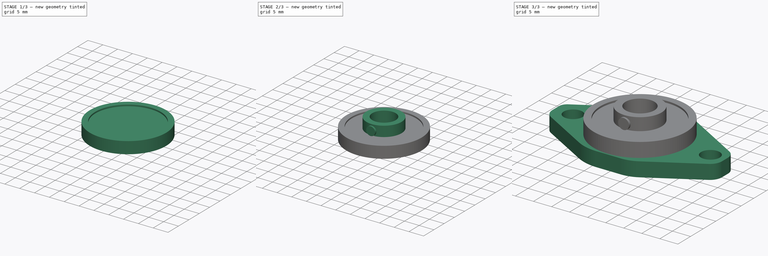
[diagram: build sequence overview — one tinted view per stage of 3, left to right]
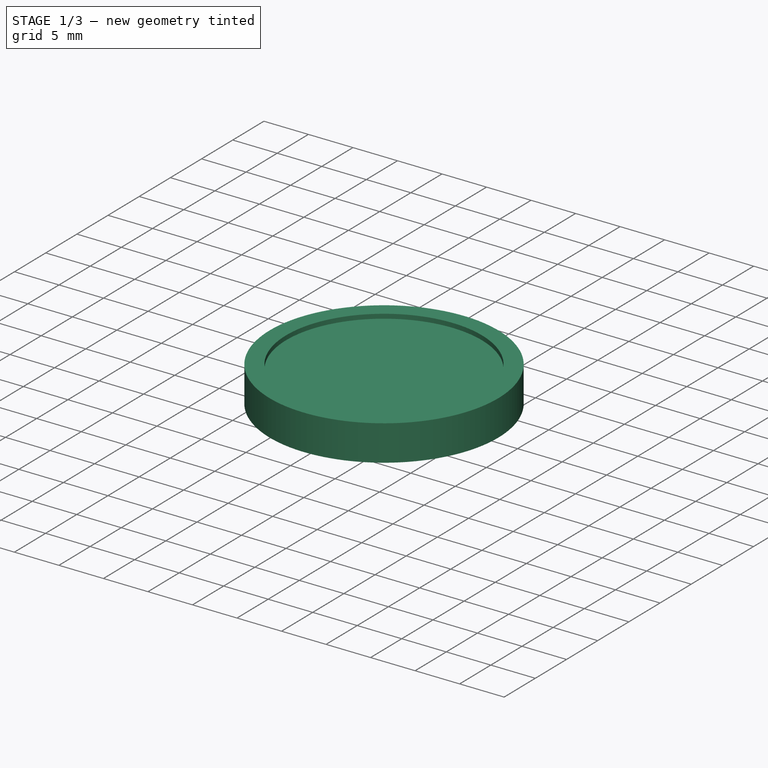
[diagram: stage 1 of 3 — iso view after this stage's code; geometry added in this stage tinted green]
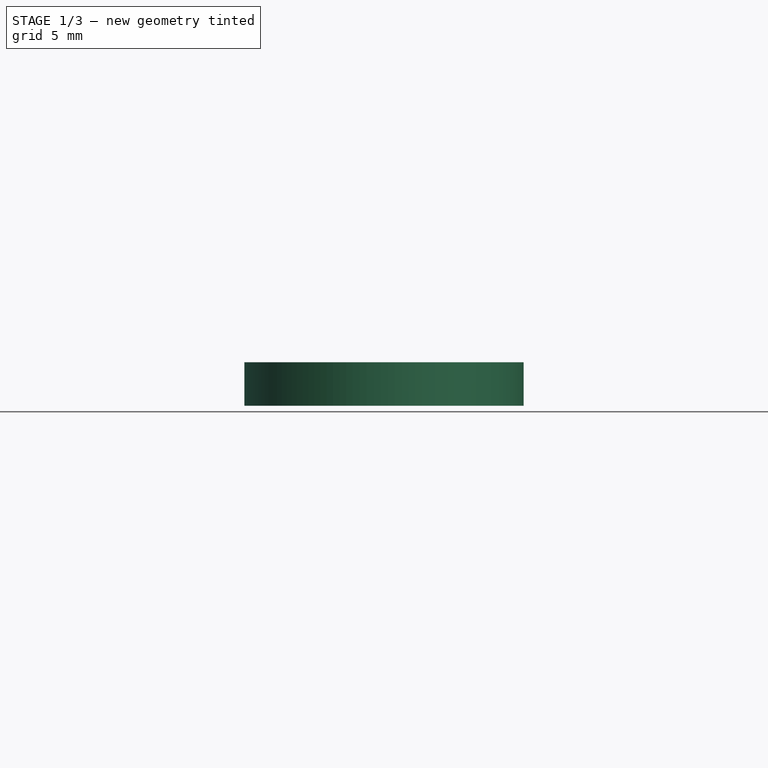
[diagram: stage 1 of 3 — front view after this stage's code; geometry added in this stage tinted green]
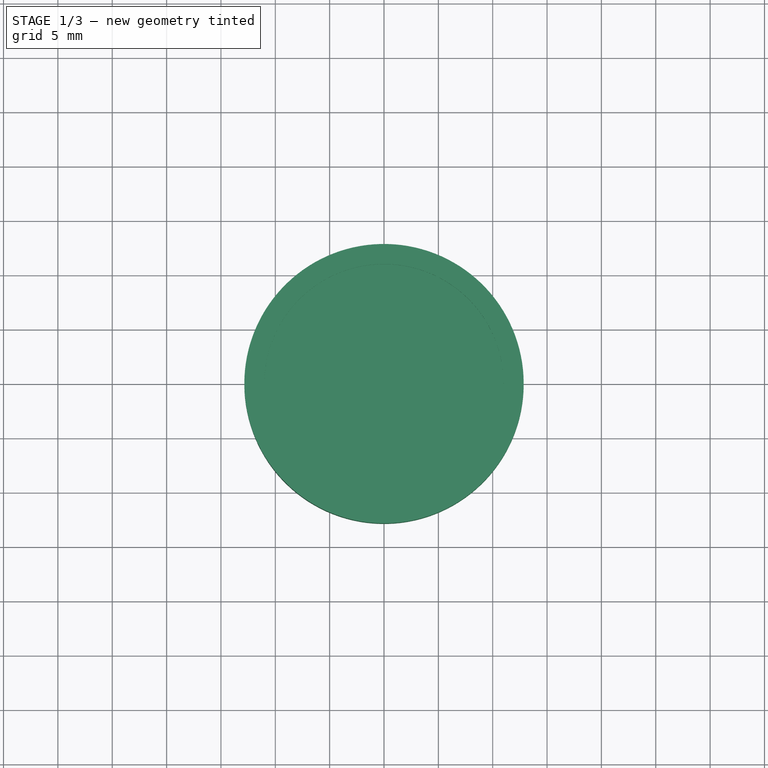
[diagram: stage 1 of 3 — top view after this stage's code; geometry added in this stage tinted green]
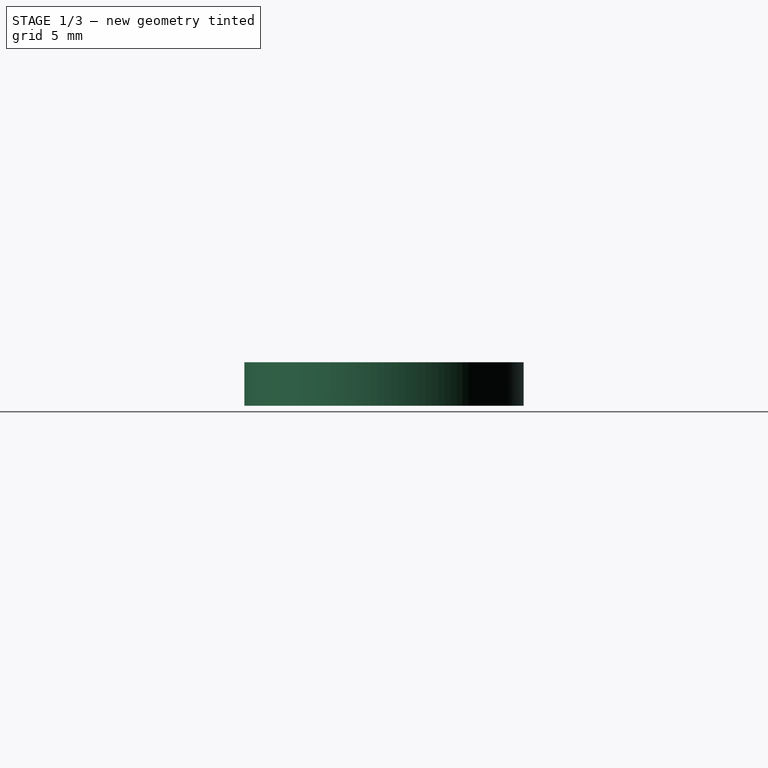
[diagram: stage 1 of 3 — right view after this stage's code; geometry added in this stage tinted green]
FCSTD DOCUMENT  (FreeCAD 0.17R13541 (Git))
Label: linearBearing-KFL08_2
License: All rights reserved
LicenseURL: http://en.wikipedia.org/wiki/All_rights_reserved
objects: Sketcher::SketchObject×7, PartDesign::Pad×4, PartDesign::Body×4, PartDesign::Pocket×3, App::Part×2
note: 25 computed .brp shape members not serialized (recipe doc carries the construction recipe); baked Part::Feature solids carry a one-line shape summary decoded from their .brp

FEATURE [Sketcher::SketchObject] Sketch
  MapMode = 5
  Support = -> [XY_Plane]
  sketch-geometry (1):
    g0: Circle CenterX=0 CenterY=0 CenterZ=0 NormalX=0 NormalY=0 NormalZ=1 AngleXU=0 Radius=12.85
  constraints (2):
    c: Coincident(g0,g-1)
    c: Radius(g0) = 12.85
FEATURE [PartDesign::Pad] Pad
  Length = 4
  Length2 = 100
  Profile = -> Sketch
  Type = 0
FEATURE [Sketcher::SketchObject] Sketch003
  MapMode = 5
  Placement = pos=(0,0,4) rot=(0,0,1;0rad)
  sketch-geometry (1):
    g0: Circle CenterX=0 CenterY=0 CenterZ=0 NormalX=0 NormalY=0 NormalZ=1 AngleXU=0 Radius=11
  constraints (2):
    c: Coincident(g0,g-1)
    c: Radius(g0) = 11
FEATURE [PartDesign::Pocket] Pocket
  BaseFeature = -> Pad
  Length = 0.5
  Length2 = 100
  Profile = -> Sketch003
  Type = 0
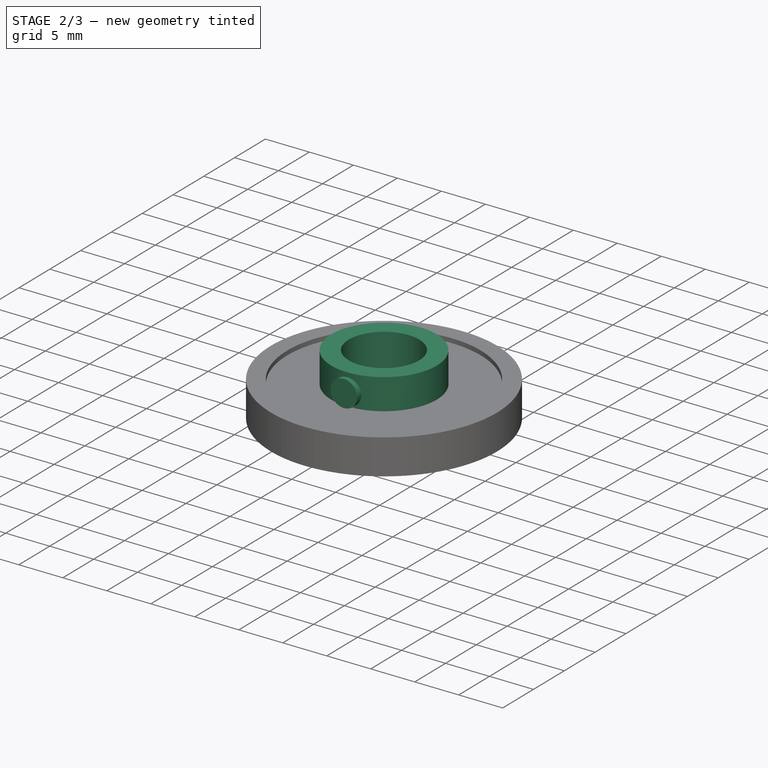
[diagram: stage 2 of 3 — iso view after this stage's code; geometry added in this stage tinted green]
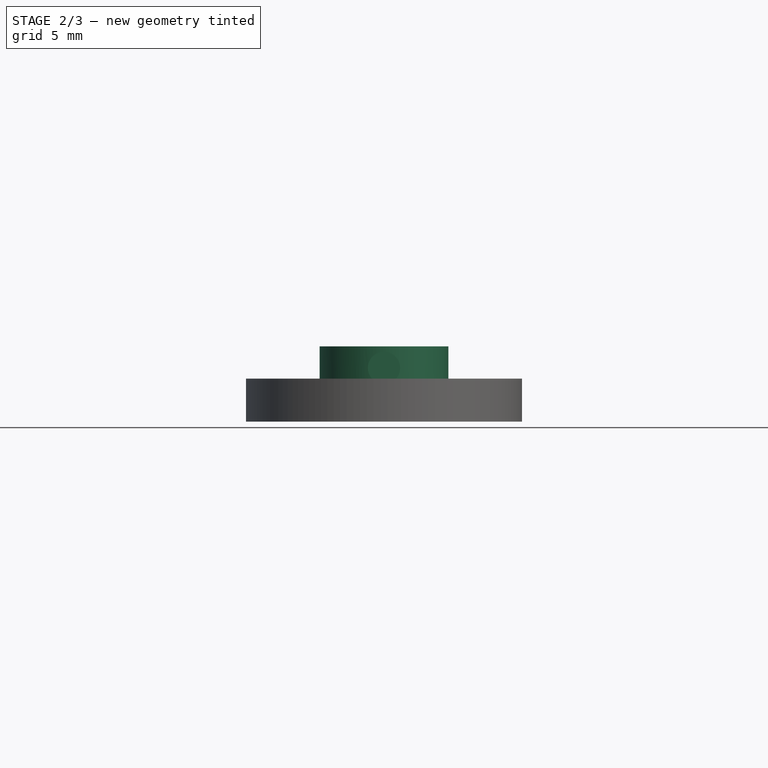
[diagram: stage 2 of 3 — front view after this stage's code; geometry added in this stage tinted green]
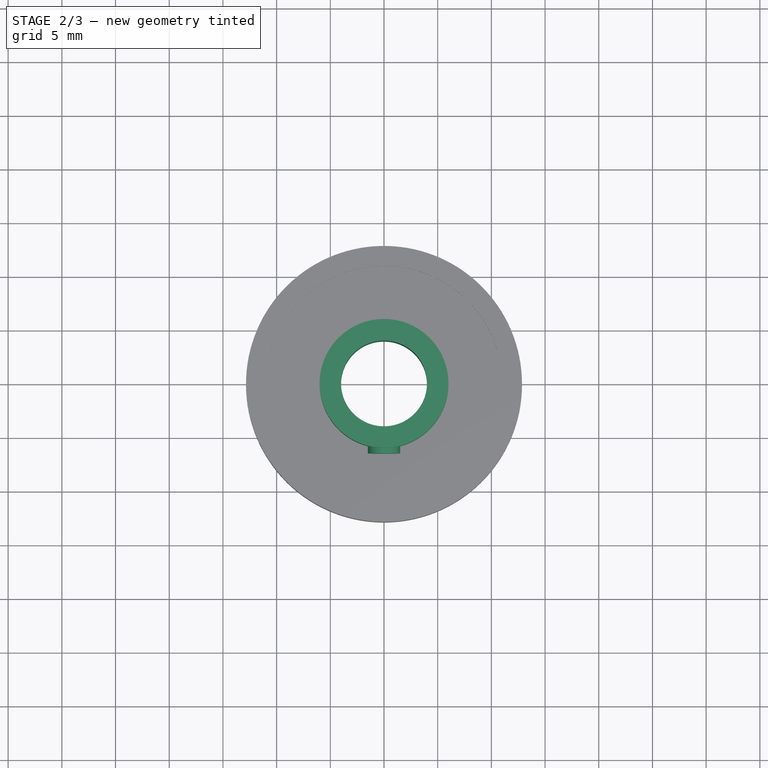
[diagram: stage 2 of 3 — top view after this stage's code; geometry added in this stage tinted green]
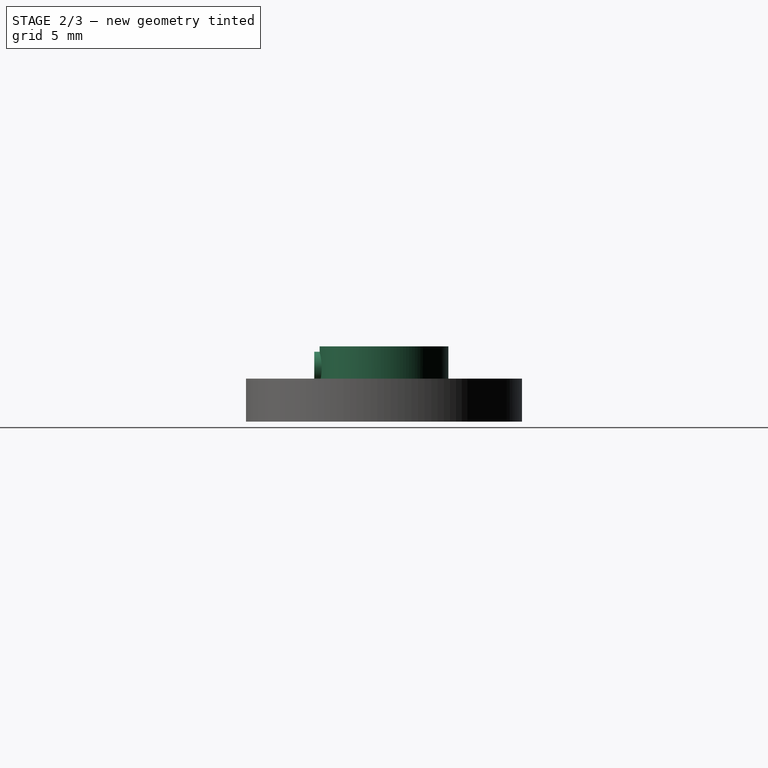
[diagram: stage 2 of 3 — right view after this stage's code; geometry added in this stage tinted green]
FEATURE [Sketcher::SketchObject] Sketch004
  MapMode = 5
  Placement = pos=(0,0,3.5) rot=(0,0,1;0rad)
  Support = -> [Pocket]
  sketch-geometry (1):
    g0: Circle CenterX=0 CenterY=0 CenterZ=0 NormalX=0 NormalY=0 NormalZ=1 AngleXU=0 Radius=6
  constraints (2):
    c: Coincident(g0,g-1)
    c: Radius(g0) = 6
FEATURE [PartDesign::Pad] Pad001
  BaseFeature = -> Pocket
  Length = 3.5
  Length2 = 100
  Profile = -> Sketch004
  Type = 0
FEATURE [Sketcher::SketchObject] Sketch005
  MapMode = 5
  Placement = pos=(0,0,7) rot=(0,0,1;0rad)
  Support = -> [Pad001]
  sketch-geometry (1):
    g0: Circle CenterX=0 CenterY=0 CenterZ=0 NormalX=0 NormalY=0 NormalZ=1 AngleXU=0 Radius=4
  constraints (2):
    c: PointOnObject(g0,g-1)
    c: Radius(g0) = 4
FEATURE [Sketcher::SketchObject] Sketch006
  MapMode = 5
  Placement = pos=(0,0,0) rot=(1,0,0;1.5708rad)
  Support = -> [XZ_Plane]
  sketch-geometry (1):
    g0: Circle CenterX=0 CenterY=5 CenterZ=0 NormalX=0 NormalY=0 NormalZ=1 AngleXU=0 Radius=1.5
  constraints (2):
    c: PointOnObject(g0,g-2)
    c: Radius(g0) = 1.5
FEATURE [Sketcher::SketchObject] Sketch007
  MapMode = 5
  Support = -> [XY_Plane]
  sketch-geometry (18):
    g0: LineSegment StartX=-3.54245 StartY=13.25 StartZ=0 EndX=4.3734 EndY=13.25 EndZ=0
    g1: LineSegment StartX=23.65 StartY=1.04209 StartZ=0 EndX=23.65 EndY=-1.32221 EndZ=0
    g2: LineSegment StartX=3.96901 StartY=-13.25 StartZ=0 EndX=-2.71589 EndY=-13.25 EndZ=0
    g3: LineSegment StartX=-23.65 StartY=-0.871538 StartZ=0 EndX=-23.65 EndY=1.68697 EndZ=0
    g4: LineSegment StartX=-8.04359 StartY=12.0439 StartZ=0 EndX=-22.4838 EndY=3.70685 EndZ=0
    g5: LineSegment StartX=-21.7776 StartY=-4.11457 StartZ=0 EndX=-8.75941 EndY=-11.6306 EndZ=0
    g6: LineSegment StartX=8.3652 StartY=-12.0747 StartZ=0 EndX=21.9595 EndY=-4.24643 EndZ=0
    g7: LineSegment StartX=7.25116 StartY=12.4771 StartZ=0 EndX=21.9699 EndY=3.95601 EndZ=0
    g8: Circle CenterX=-18.5 CenterY=-0.045589 CenterZ=0 NormalX=0 NormalY=0 NormalZ=1 AngleXU=0 Radius=2.6
    g9: Circle CenterX=19.5 CenterY=0 CenterZ=0 NormalX=0 NormalY=0 NormalZ=1 AngleXU=0 Radius=2.6
    g10: ArcOfCircle CenterX=-3.54245 CenterY=4.24771 CenterZ=0 NormalX=0 NormalY=0 NormalZ=1 AngleXU=0 Radius=9.00229 StartAngle=1.5708 EndAngle=2.0944
    g11: ArcOfCircle CenterX=4.3734 CenterY=7.50623 CenterZ=0 NormalX=0 NormalY=0 NormalZ=1 AngleXU=0 Radius=5.74377 StartAngle=1.04602 EndAngle=1.5708
    g12: ArcOfCircle CenterX=20.283 CenterY=1.04209 CenterZ=0 NormalX=0 NormalY=0 NormalZ=1 AngleXU=0 Radius=3.367 StartAngle=0 EndAngle=1.04602
    g13: ArcOfCircle CenterX=20.2756 CenterY=-1.32221 CenterZ=0 NormalX=0 NormalY=0 NormalZ=1 AngleXU=0 Radius=3.37441 StartAngle=5.23486 EndAngle=6.28319
    g14: ArcOfCircle CenterX=3.96901 CenterY=-4.44043 CenterZ=0 NormalX=0 NormalY=0 NormalZ=1 AngleXU=0 Radius=8.80957 StartAngle=4.71239 EndAngle=5.23486
    g15: ArcOfCircle CenterX=-2.71589 CenterY=-1.16296 CenterZ=0 NormalX=0 NormalY=0 NormalZ=1 AngleXU=0 Radius=12.087 StartAngle=4.18879 EndAngle=4.71239
    g16: ArcOfCircle CenterX=-19.9053 CenterY=-0.871538 CenterZ=0 NormalX=0 NormalY=0 NormalZ=1 AngleXU=0 Radius=3.74473 StartAngle=3.14159 EndAngle=4.18879
    g17: ArcOfCircle CenterX=-21.3176 CenterY=1.68697 CenterZ=0 NormalX=0 NormalY=0 NormalZ=1 AngleXU=0 Radius=2.33237 StartAngle=2.0944 EndAngle=3.14159
  constraints (27):
    c: Horizontal(g0)
    c: Horizontal(g2)
    c: Vertical(g1)
    c: Vertical(g3)
    c: Angle(g-1,g4) = 0.523599
    c: Angle(g5,g-1) = 0.523599
    c: Radius(g8) = 2.6
    c: DistanceX(g8,g-1) = 18.5
    c: PointOnObject(g9,g-1)
    c: Radius(g9) = 2.6
    c: DistanceX(g8,g9) = 38
    c: Tangent(g4,g10) = -1.5708
    c: Tangent(g0,g10) = 1.5708
    c: Tangent(g0,g11) = 1.5708
    c: Tangent(g7,g11) = 1.5708
    c: Tangent(g7,g12) = 1.5708
    c: Tangent(g1,g12) = 1.5708
    c: Tangent(g1,g13) = 1.5708
    c: Tangent(g6,g13) = -1.5708
    c: Tangent(g6,g14) = -1.5708
    c: Tangent(g2,g14) = 1.5708
    c: Tangent(g2,g15) = 1.5708
    c: Tangent(g5,g15) = -1.5708
    c: Tangent(g5,g16) = -1.5708
    c: Tangent(g3,g16) = 1.5708
    c: Tangent(g3,g17) = 1.5708
    c: Tangent(g4,g17) = -1.5708
FEATURE [PartDesign::Pad] Pad002
  BaseFeature = -> Pad001
  Length = 6.5
  Length2 = 100
  Profile = -> Sketch006
  Type = 0
FEATURE [PartDesign::Pocket] Pocket001
  BaseFeature = -> Pad002
  Length = 5
  Length2 = 100
  Profile = -> Sketch005
  Type = 1
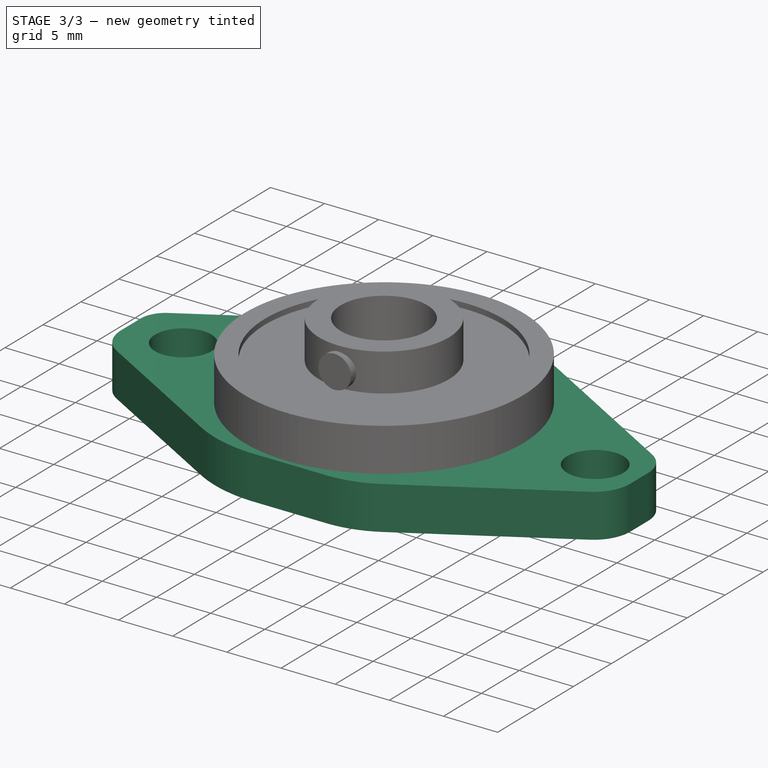
[diagram: stage 3 of 3 — iso view after this stage's code; geometry added in this stage tinted green]
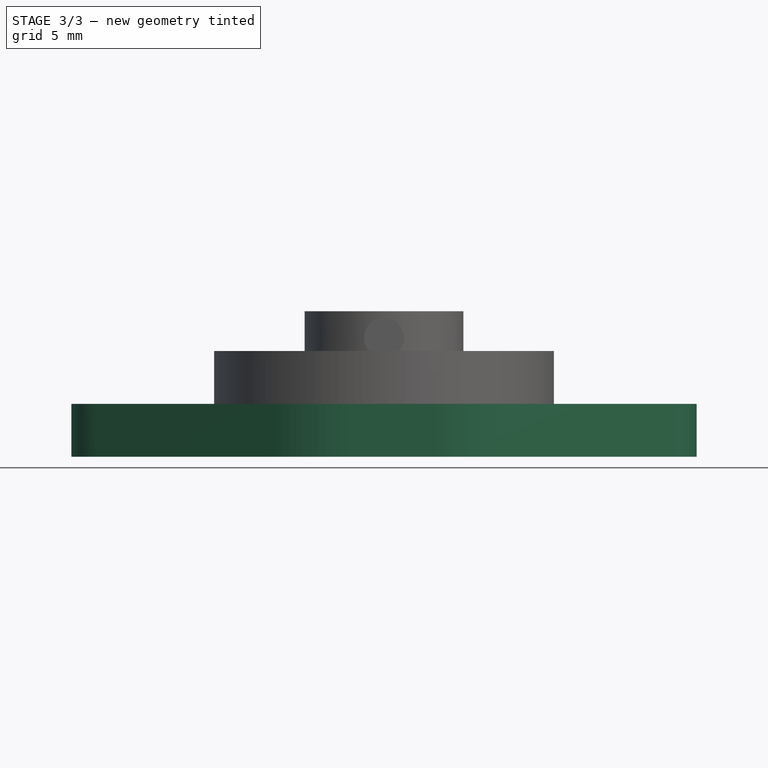
[diagram: stage 3 of 3 — front view after this stage's code; geometry added in this stage tinted green]
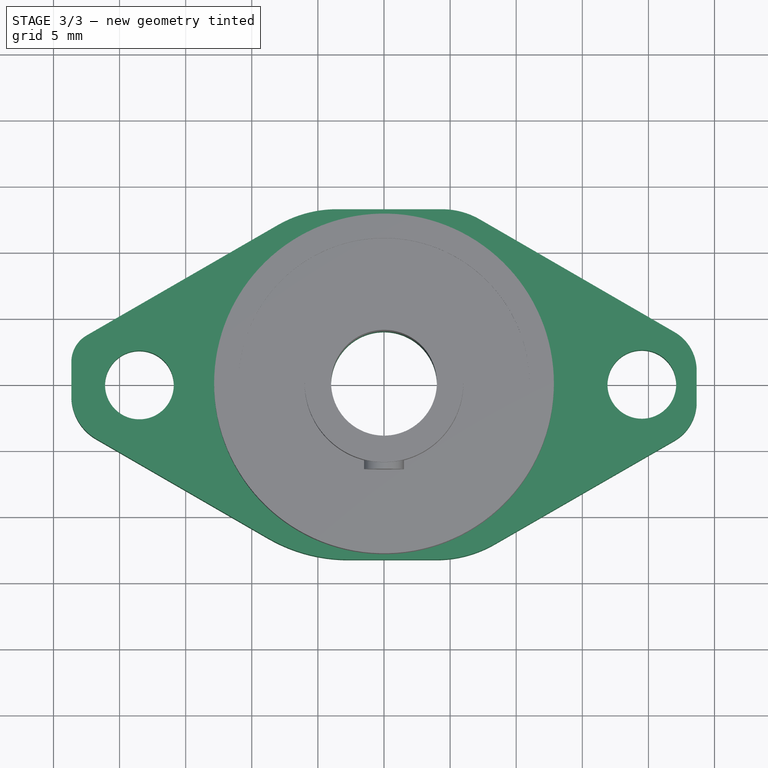
[diagram: stage 3 of 3 — top view after this stage's code; geometry added in this stage tinted green]
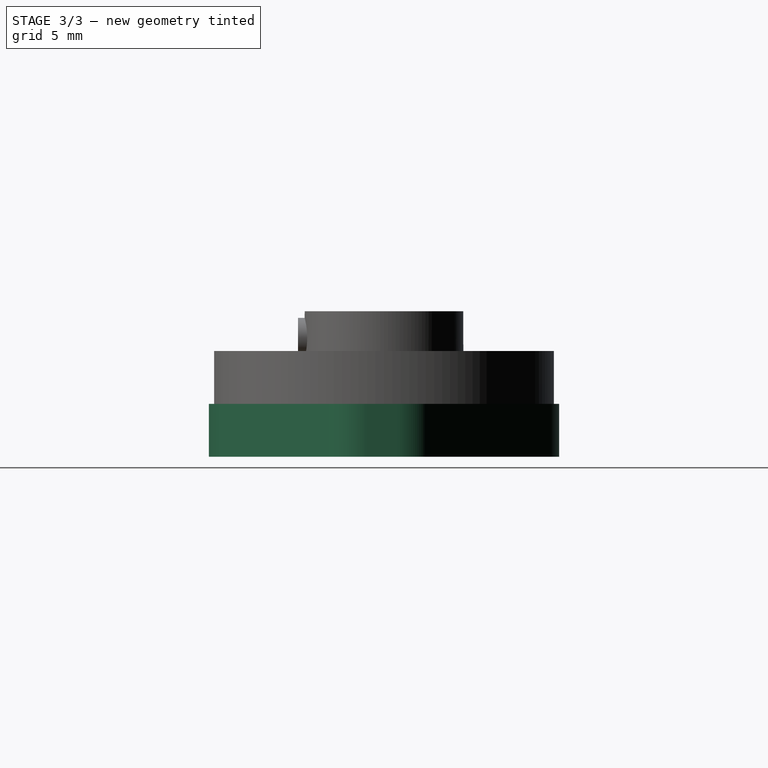
[diagram: stage 3 of 3 — right view after this stage's code; geometry added in this stage tinted green]
FEATURE [PartDesign::Pad] Pad003
  BaseFeature = -> Pocket001
  Length = 4
  Length2 = 100
  Profile = -> Sketch007
  Reversed = true
  Type = 0
FEATURE [Sketcher::SketchObject] Sketch008
  MapMode = 5
  Support = -> [XY_Plane]
  sketch-geometry (1):
    g0: Circle CenterX=0 CenterY=0 CenterZ=0 NormalX=0 NormalY=0 NormalZ=1 AngleXU=0 Radius=4
  constraints (2):
    c: Coincident(g0,g-1)
    c: Radius(g0) = 4
FEATURE [PartDesign::Pocket] Pocket002
  BaseFeature = -> Pad003
  Length = 4
  Length2 = 100
  Profile = -> Sketch008
  Type = 0
FEATURE [PartDesign::Body] Body
  Group = -> [Sketch,Pad,Sketch003,Pocket,Sketch004,Pad001,Sketch006,Sketch005,Sketch007,Pad002,Pocket001,Pad003,Sketch008,Pocket002]
  Origin = -> Origin
  Tip = -> Pocket002
FEATURE [App::Part] Part
  License = CC BY 3.0
  LicenseURL = http://creativecommons.org/licenses/by/3.0/
  Origin = -> Origin001
FEATURE [PartDesign::Body] Body001
  Origin = -> Origin003
FEATURE [PartDesign::Body] Body002
  Origin = -> Origin004
FEATURE [PartDesign::Body] Body003
  Origin = -> Origin005
FEATURE [App::Part] Part001
  Group = -> [Body001,Body002,Body003]
  License = CC BY 3.0
  LicenseURL = http://creativecommons.org/licenses/by/3.0/
  Origin = -> Origin002
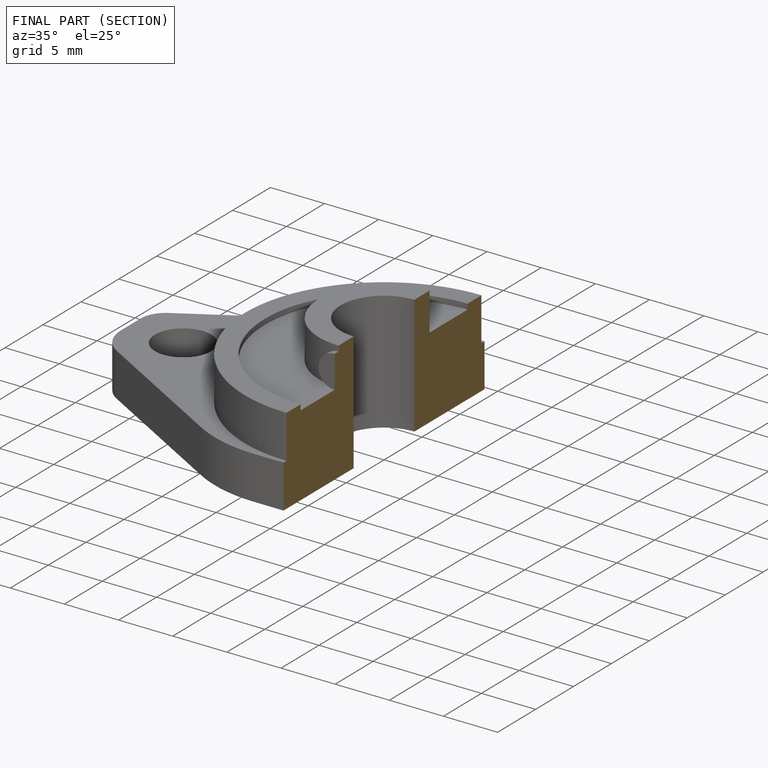
[diagram: finished part — half-section view (interior)]
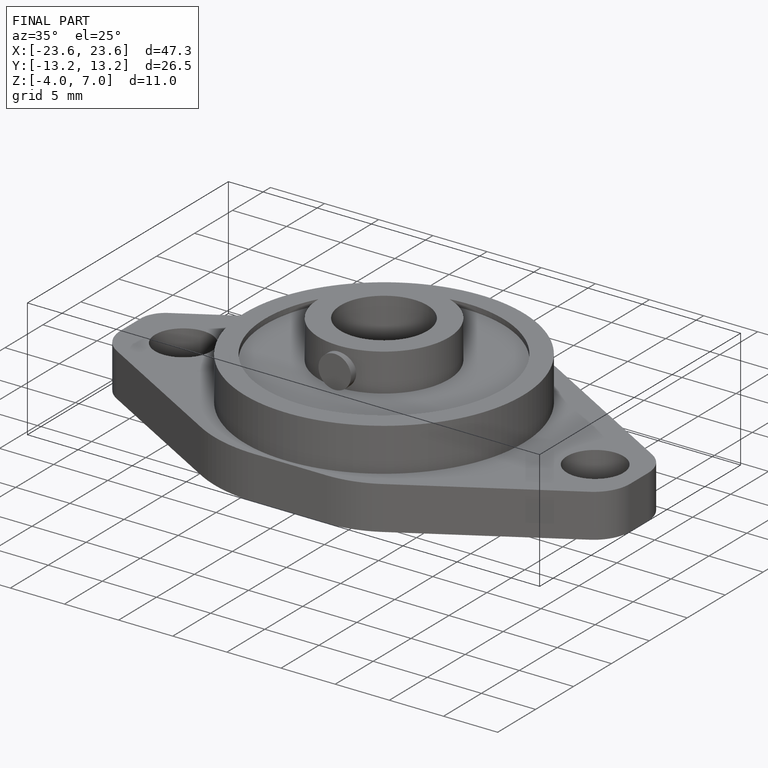
[diagram: finished part — iso view with bounding-box wireframe]
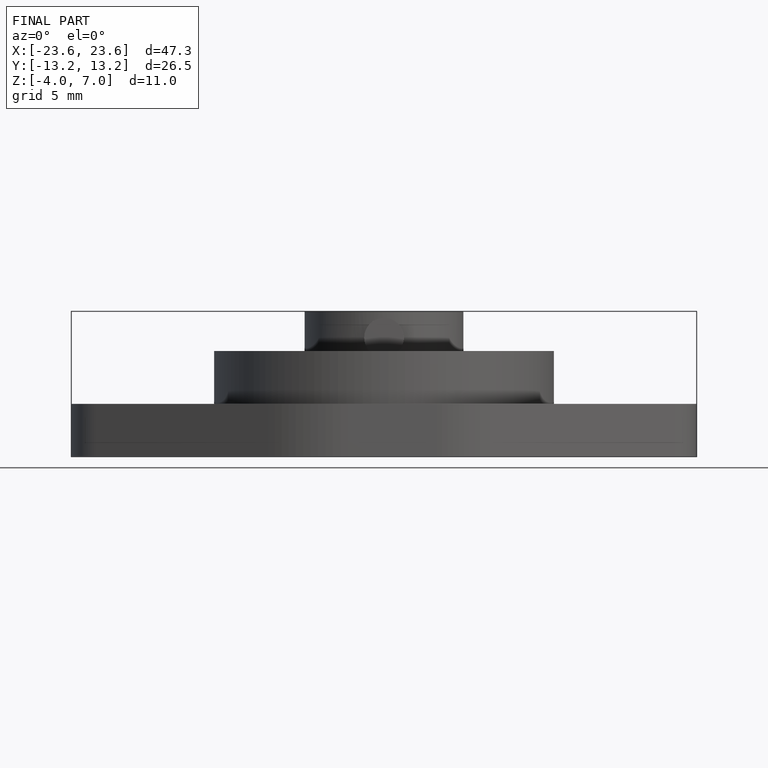
[diagram: finished part — front view with bounding-box wireframe]
